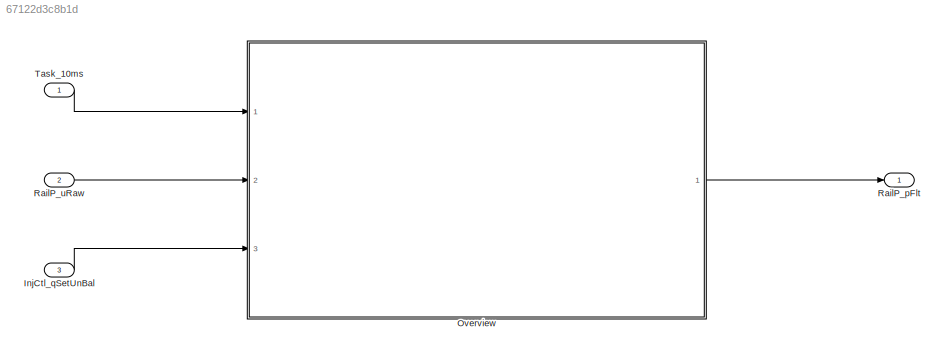
MODEL slx_67122d3c8b1d
KIND model
CONFIG AbsTol = auto
CONFIG EnableMultiTasking = off
CONFIG FixedStep = auto
CONFIG MaxStep = auto
CONFIG MinStep = auto
CONFIG RelTol = 1e-3
CONFIG SampleTimeConstraint = Unconstrained
CONFIG SolverName = VariableStepAuto
CONFIG StartTime = 0.0
CONFIG StopTime = 10.0
BLOCK [Inport] InjCtl_qSetUnBal
  Port = 3
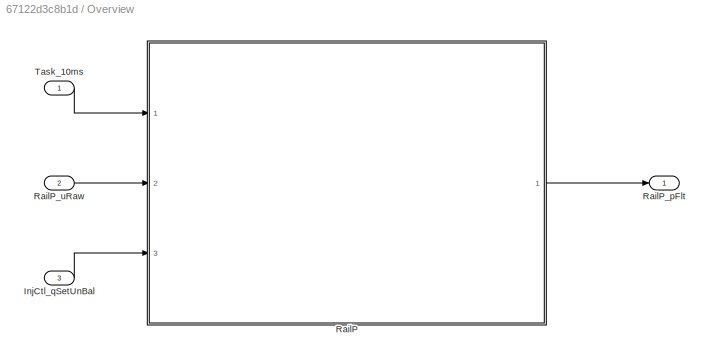
BLOCK [SubSystem] Overview
  Ports = [3, 1]
  RequestExecContextInheritance = off
BLOCK [Inport] Overview/InjCtl_qSetUnBal
  Port = 3
BLOCK [ModelReference] Overview/RailP
  ModelNameDialog = RailP
  ModelReferenceVersion = 6.1
  Ports = [3, 1]
  ScheduleRates = on
BLOCK [Outport] Overview/RailP_pFlt
  VectorParamsAs1DForOutWhenUnconnected = off
BLOCK [Inport] Overview/RailP_uRaw
  Port = 2
BLOCK [Inport] Overview/Task_10ms
BLOCK [Outport] RailP_pFlt
  VectorParamsAs1DForOutWhenUnconnected = off
BLOCK [Inport] RailP_uRaw
  Port = 2
BLOCK [Inport] Task_10ms
  OutputFunctionCall = on
LINE InjCtl_qSetUnBal:1 -> Overview:3
LINE Overview/InjCtl_qSetUnBal:1 -> Overview/RailP:3
LINE Overview/RailP:1 -> Overview/RailP_pFlt:1
LINE Overview/RailP_uRaw:1 -> Overview/RailP:2
LINE Overview/Task_10ms:1 -> Overview/RailP:1
LINE Overview:1 -> RailP_pFlt:1
LINE RailP_uRaw:1 -> Overview:2
LINE Task_10ms:1 -> Overview:1
